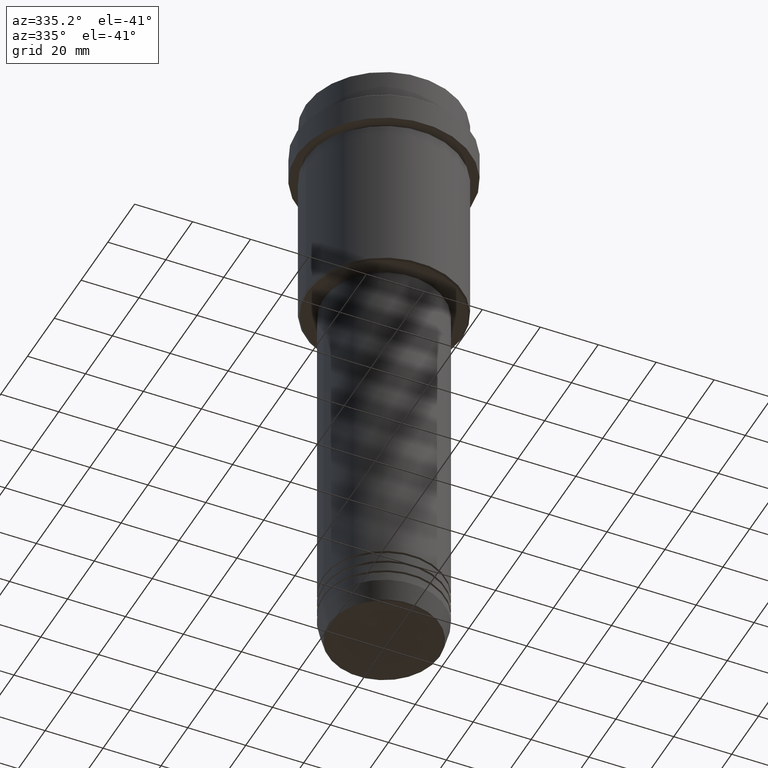
[diagram: clean part render]
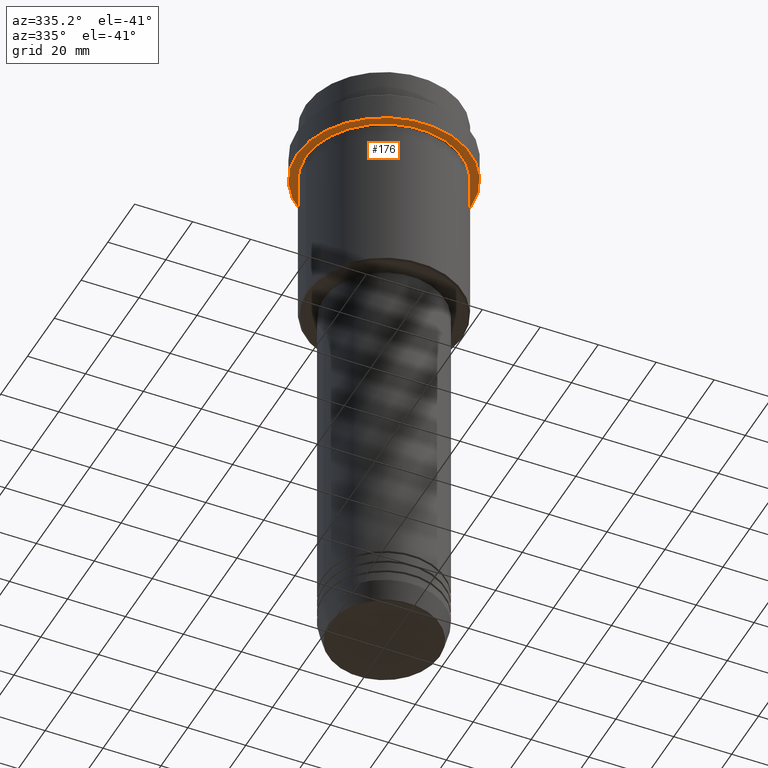
[diagram: same view with one face highlighted and labeled with its STEP entity id]
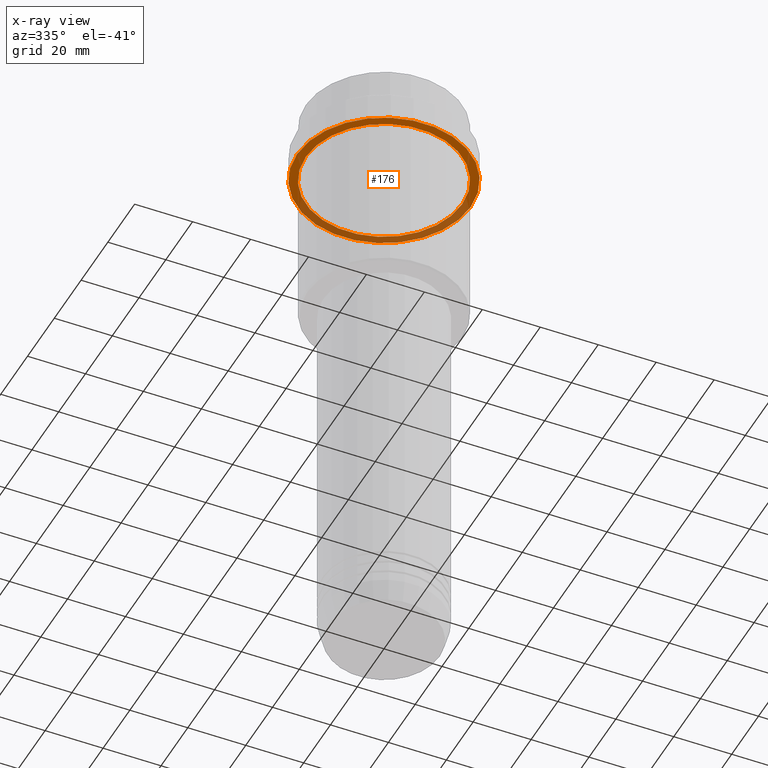
[diagram: x-ray of the same camera — body ghosted, the highlighted face saturated]
A machine part, auxiliary view. The second image highlights one B-rep face of the part: STEP entity #176.
The next image is the same camera in x-ray: the body ghosted, the highlighted face saturated — about 38% of this face is hidden behind the body in this view.
In plain terms, the highlighted planar face has unit normal (0, 0, -1).
Its self-contained STEP definition (entity closure, byte-faithful):
#89 = EDGE_LOOP ( 'NONE', ( #1193, #1040 ) ) ;
#105 = CIRCLE ( 'NONE', #403, 29.99999999999999645 ) ;
#133 = ORIENTED_EDGE ( 'NONE', *, *, #325, .T. ) ;
#173 = AXIS2_PLACEMENT_3D ( 'NONE', #716, #637, #1389 ) ;
#176 = ADVANCED_FACE ( 'NONE', ( #1198, #1215 ), #1408, .T. ) ;
#181 = CARTESIAN_POINT ( 'NONE',  ( 0.000000000000000000, 0.000000000000000000, -22.00000000000000355 ) ) ;
#279 = CARTESIAN_POINT ( 'NONE',  ( 26.99999999999999289, 3.306546357697852944E-15, -22.00000000000000000 ) ) ;
#295 = CARTESIAN_POINT ( 'NONE',  ( 0.000000000000000000, 0.000000000000000000, -22.00000000000000000 ) ) ;
#298 = CARTESIAN_POINT ( 'NONE',  ( -29.99999999999999645, 3.673940397442058389E-15, -22.00000000000000355 ) ) ;
#325 = EDGE_CURVE ( 'NONE', #617, #374, #334, .T. ) ;
#334 = CIRCLE ( 'NONE', #893, 26.99999999999999289 ) ;
#360 = ORIENTED_EDGE ( 'NONE', *, *, #1100, .T. ) ;
#374 = VERTEX_POINT ( 'NONE', #489 ) ;
#403 = AXIS2_PLACEMENT_3D ( 'NONE', #181, #729, #1066 ) ;
#404 = AXIS2_PLACEMENT_3D ( 'NONE', #295, #1350, #1228 ) ;
#487 = CARTESIAN_POINT ( 'NONE',  ( 29.99999999999999645, 0.000000000000000000, -22.00000000000000355 ) ) ;
#489 = CARTESIAN_POINT ( 'NONE',  ( -26.99999999999999289, 0.000000000000000000, -22.00000000000000000 ) ) ;
#545 = CARTESIAN_POINT ( 'NONE',  ( 0.000000000000000000, 29.99999999999999645, -22.00000000000000000 ) ) ;
#560 = EDGE_CURVE ( 'NONE', #765, #1114, #1289, .T. ) ;
#617 = VERTEX_POINT ( 'NONE', #279 ) ;
#637 = DIRECTION ( 'NONE',  ( -0.000000000000000000, -0.000000000000000000, 1.000000000000000000 ) ) ;
#660 = DIRECTION ( 'NONE',  ( -1.000000000000000000, 0.000000000000000000, -0.000000000000000000 ) ) ;
#698 = DIRECTION ( 'NONE',  ( -0.000000000000000000, -0.000000000000000000, 1.000000000000000000 ) ) ;
#703 = CIRCLE ( 'NONE', #404, 26.99999999999999289 ) ;
#716 = CARTESIAN_POINT ( 'NONE',  ( 0.000000000000000000, 0.000000000000000000, -22.00000000000000355 ) ) ;
#729 = DIRECTION ( 'NONE',  ( -0.000000000000000000, -0.000000000000000000, 1.000000000000000000 ) ) ;
#765 = VERTEX_POINT ( 'NONE', #298 ) ;
#786 = EDGE_CURVE ( 'NONE', #1114, #765, #105, .T. ) ;
#893 = AXIS2_PLACEMENT_3D ( 'NONE', #1140, #698, #1018 ) ;
#1018 = DIRECTION ( 'NONE',  ( -1.000000000000000000, 0.000000000000000000, 0.000000000000000000 ) ) ;
#1040 = ORIENTED_EDGE ( 'NONE', *, *, #560, .F. ) ;
#1066 = DIRECTION ( 'NONE',  ( 1.000000000000000000, 0.000000000000000000, 0.000000000000000000 ) ) ;
#1091 = EDGE_LOOP ( 'NONE', ( #360, #133 ) ) ;
#1100 = EDGE_CURVE ( 'NONE', #374, #617, #703, .T. ) ;
#1114 = VERTEX_POINT ( 'NONE', #487 ) ;
#1140 = CARTESIAN_POINT ( 'NONE',  ( 0.000000000000000000, 0.000000000000000000, -22.00000000000000000 ) ) ;
#1193 = ORIENTED_EDGE ( 'NONE', *, *, #786, .F. ) ;
#1198 = FACE_BOUND ( 'NONE', #1091, .T. ) ;
#1215 = FACE_OUTER_BOUND ( 'NONE', #89, .T. ) ;
#1228 = DIRECTION ( 'NONE',  ( -1.000000000000000000, 0.000000000000000000, 0.000000000000000000 ) ) ;
#1274 = AXIS2_PLACEMENT_3D ( 'NONE', #545, #1317, #660 ) ;
#1289 = CIRCLE ( 'NONE', #173, 29.99999999999999645 ) ;
#1317 = DIRECTION ( 'NONE',  ( 0.000000000000000000, 0.000000000000000000, -1.000000000000000000 ) ) ;
#1350 = DIRECTION ( 'NONE',  ( -0.000000000000000000, -0.000000000000000000, 1.000000000000000000 ) ) ;
#1389 = DIRECTION ( 'NONE',  ( 1.000000000000000000, 0.000000000000000000, 0.000000000000000000 ) ) ;
#1408 = PLANE ( 'NONE',  #1274 ) ;